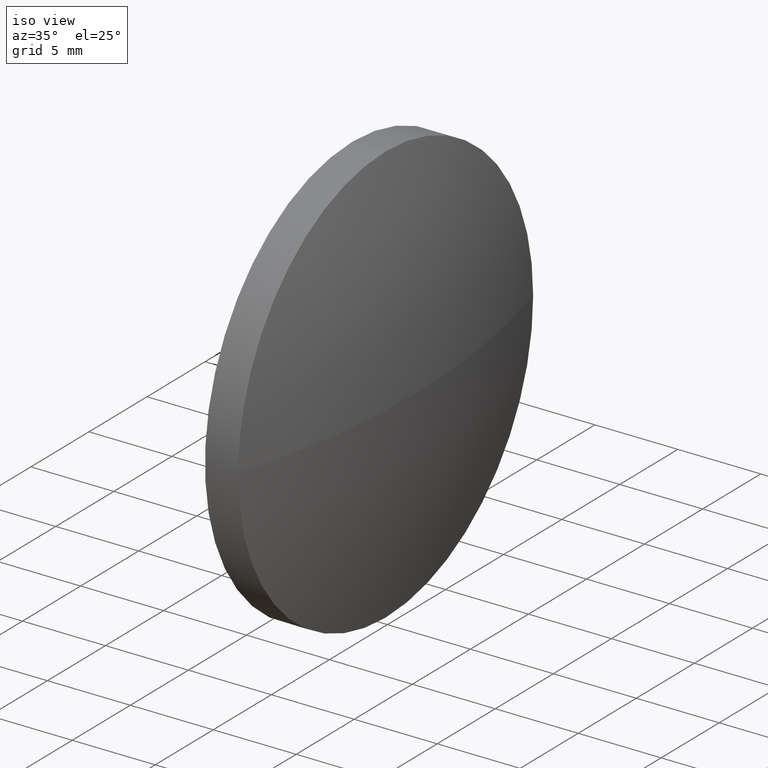
[diagram: clean part render]
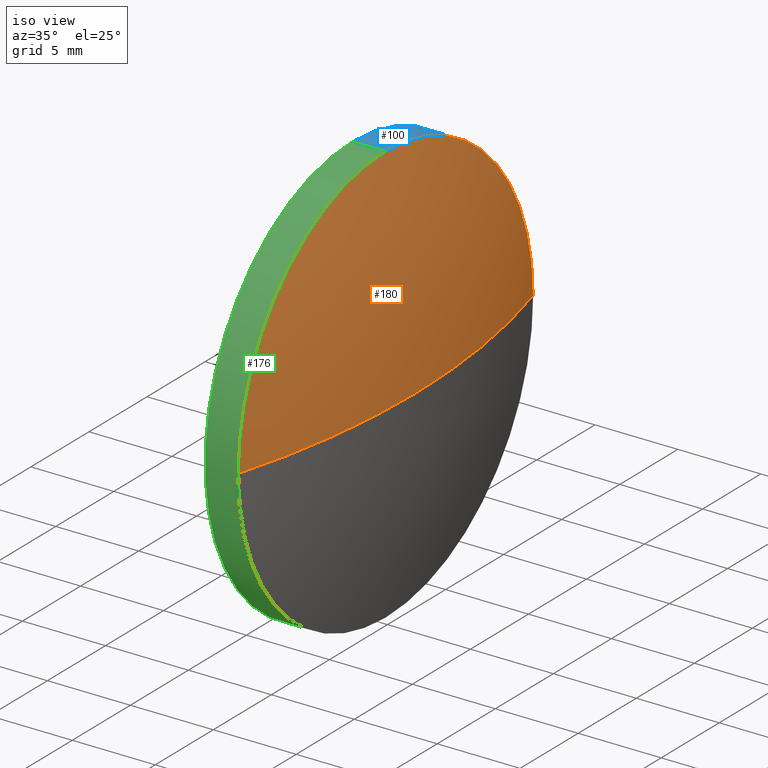
[diagram: same view with three faces highlighted in distinct colors, each labeled with its STEP entity id]
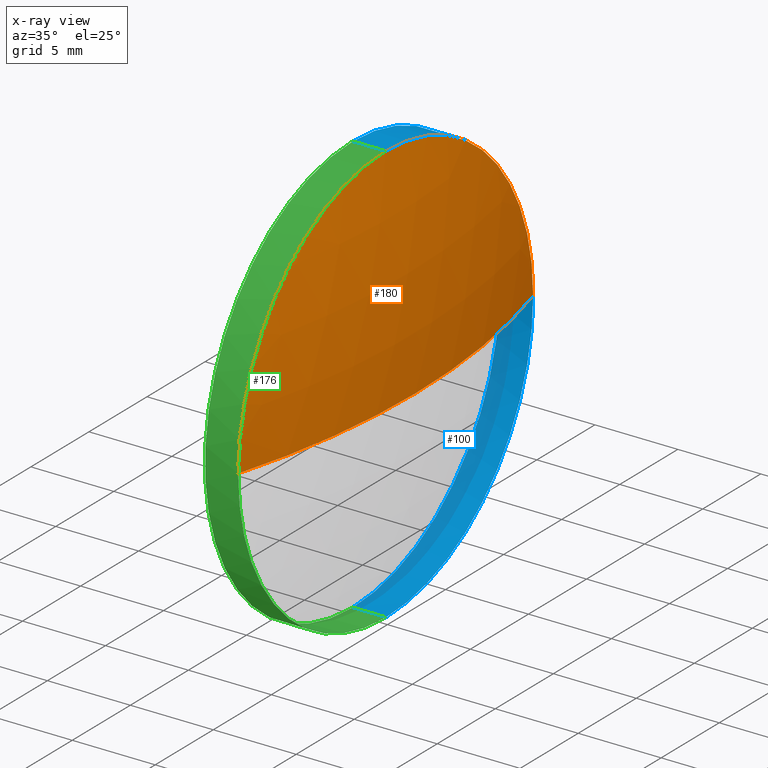
[diagram: x-ray of the same camera — body ghosted, the three highlighted faces saturated]
A machine part, iso view with three faces highlighted in distinct colors.
The next image is the same camera in x-ray (body ghosted, the three faces saturated) — at least one of them is partly hidden behind the body in this view.
Their STEP definitions:

[orange] entity #180 — the highlighted spherical surface has radius 45.7028 mm.
#2 = EDGE_CURVE ( 'NONE', #21, #55, #76, .T. ) ;
#5 = AXIS2_PLACEMENT_3D ( 'NONE', #63, #95, #109 ) ;
#9 = CARTESIAN_POINT ( 'NONE',  ( 456.2206596790415500, 104.6700815255058900, 0.0000000000000000000 ) ) ;
#10 = CIRCLE ( 'NONE', #5, 12.70000000000000300 ) ;
#12 = CARTESIAN_POINT ( 'NONE',  ( 501.9234374568194400, 104.6700815255058900, 0.0000000000000000000 ) ) ;
#15 = ORIENTED_EDGE ( 'NONE', *, *, #2, .F. ) ;
#17 = EDGE_CURVE ( 'NONE', #21, #156, #134, .T. ) ;
#21 = VERTEX_POINT ( 'NONE', #12 ) ;
#29 = DIRECTION ( 'NONE',  ( -1.000000000000000000, -0.0000000000000000000, -0.0000000000000000000 ) ) ;
#34 = AXIS2_PLACEMENT_3D ( 'NONE', #9, #163, #104 ) ;
#37 = ORIENTED_EDGE ( 'NONE', *, *, #48, .F. ) ;
#46 = DIRECTION ( 'NONE',  ( 0.0000000000000000000, 0.0000000000000000000, 1.000000000000000000 ) ) ;
#47 = CARTESIAN_POINT ( 'NONE',  ( 500.1234374568194300, 104.6700815255059400, 0.0000000000000000000 ) ) ;
#48 = EDGE_CURVE ( 'NONE', #55, #83, #10, .T. ) ;
#55 = VERTEX_POINT ( 'NONE', #61 ) ;
#61 = CARTESIAN_POINT ( 'NONE',  ( 500.1234374568194300, 91.97008152550587600, -1.555301434917139400E-015 ) ) ;
#63 = CARTESIAN_POINT ( 'NONE',  ( 500.1234374568194300, 104.6700815255059400, 0.0000000000000000000 ) ) ;
#76 = CIRCLE ( 'NONE', #186, 45.70277777777792500 ) ;
#79 = CARTESIAN_POINT ( 'NONE',  ( 500.1234374568194300, 117.3700815255059500, 0.0000000000000000000 ) ) ;
#80 = EDGE_CURVE ( 'NONE', #83, #156, #108, .T. ) ;
#83 = VERTEX_POINT ( 'NONE', #137 ) ;
#84 = FACE_OUTER_BOUND ( 'NONE', #99, .T. ) ;
#85 = CARTESIAN_POINT ( 'NONE',  ( 456.2206596790415500, 104.6700815255058900, 0.0000000000000000000 ) ) ;
#91 = SPHERICAL_SURFACE ( 'NONE', #34, 45.70277777777791800 ) ;
#92 = ORIENTED_EDGE ( 'NONE', *, *, #17, .T. ) ;
#95 = DIRECTION ( 'NONE',  ( -1.000000000000000000, -0.0000000000000000000, -0.0000000000000000000 ) ) ;
#99 = EDGE_LOOP ( 'NONE', ( #15, #92, #144, #37 ) ) ;
#103 = DIRECTION ( 'NONE',  ( 1.000000000000000000, 0.0000000000000000000, 0.0000000000000000000 ) ) ;
#104 = DIRECTION ( 'NONE',  ( 0.0000000000000000000, 1.000000000000000000, 0.0000000000000000000 ) ) ;
#108 = CIRCLE ( 'NONE', #128, 12.70000000000000300 ) ;
#109 = DIRECTION ( 'NONE',  ( 0.0000000000000000000, 0.0000000000000000000, 1.000000000000000000 ) ) ;
#127 = CARTESIAN_POINT ( 'NONE',  ( 456.2206596790415500, 104.6700815255058900, 0.0000000000000000000 ) ) ;
#128 = AXIS2_PLACEMENT_3D ( 'NONE', #47, #29, #46 ) ;
#134 = CIRCLE ( 'NONE', #142, 45.70277777777792500 ) ;
#137 = CARTESIAN_POINT ( 'NONE',  ( 500.1234374568194300, 104.6700815255059400, 12.70000000000000300 ) ) ;
#142 = AXIS2_PLACEMENT_3D ( 'NONE', #85, #184, #103 ) ;
#144 = ORIENTED_EDGE ( 'NONE', *, *, #80, .F. ) ;
#154 = DIRECTION ( 'NONE',  ( 0.0000000000000000000, 1.224646799147353200E-016, -1.000000000000000000 ) ) ;
#155 = DIRECTION ( 'NONE',  ( 0.0000000000000000000, 1.000000000000000000, 1.224646799147353000E-016 ) ) ;
#156 = VERTEX_POINT ( 'NONE', #79 ) ;
#163 = DIRECTION ( 'NONE',  ( -0.0000000000000000000, 0.0000000000000000000, -1.000000000000000000 ) ) ;
#180 = ADVANCED_FACE ( 'NONE', ( #84 ), #91, .T. ) ;
#184 = DIRECTION ( 'NONE',  ( -0.0000000000000000000, 0.0000000000000000000, 1.000000000000000000 ) ) ;
#186 = AXIS2_PLACEMENT_3D ( 'NONE', #127, #154, #155 ) ;

[blue] entity #100 — the highlighted cylindrical surface (partial cylindrical patch) has radius 12.7 mm, axis along (-1, -0, -0).
#14 = DIRECTION ( 'NONE',  ( -1.000000000000000000, -0.0000000000000000000, -0.0000000000000000000 ) ) ;
#20 = VECTOR ( 'NONE', #56, 1000.000000000000000 ) ;
#22 = DIRECTION ( 'NONE',  ( 0.0000000000000000000, 0.0000000000000000000, 1.000000000000000000 ) ) ;
#29 = DIRECTION ( 'NONE',  ( -1.000000000000000000, -0.0000000000000000000, -0.0000000000000000000 ) ) ;
#32 = AXIS2_PLACEMENT_3D ( 'NONE', #140, #111, #22 ) ;
#33 = ORIENTED_EDGE ( 'NONE', *, *, #90, .F. ) ;
#41 = DIRECTION ( 'NONE',  ( 0.0000000000000000000, 0.0000000000000000000, 1.000000000000000000 ) ) ;
#42 = CARTESIAN_POINT ( 'NONE',  ( 500.1234374568194300, 104.6700815255059400, -12.70000000000000300 ) ) ;
#43 = CARTESIAN_POINT ( 'NONE',  ( 492.4187639093645400, 104.6700815255059400, -12.70000000000000300 ) ) ;
#46 = DIRECTION ( 'NONE',  ( 0.0000000000000000000, 0.0000000000000000000, 1.000000000000000000 ) ) ;
#47 = CARTESIAN_POINT ( 'NONE',  ( 500.1234374568194300, 104.6700815255059400, 0.0000000000000000000 ) ) ;
#49 = DIRECTION ( 'NONE',  ( 0.0000000000000000000, 0.0000000000000000000, 1.000000000000000000 ) ) ;
#50 = ORIENTED_EDGE ( 'NONE', *, *, #181, .F. ) ;
#53 = ORIENTED_EDGE ( 'NONE', *, *, #121, .T. ) ;
#56 = DIRECTION ( 'NONE',  ( -1.000000000000000000, -0.0000000000000000000, -0.0000000000000000000 ) ) ;
#59 = DIRECTION ( 'NONE',  ( -1.000000000000000000, -0.0000000000000000000, -0.0000000000000000000 ) ) ;
#62 = CYLINDRICAL_SURFACE ( 'NONE', #123, 12.70000000000000300 ) ;
#65 = CIRCLE ( 'NONE', #96, 12.70000000000000300 ) ;
#68 = CARTESIAN_POINT ( 'NONE',  ( 492.4187639093645400, 104.6700815255059400, 0.0000000000000000000 ) ) ;
#70 = DIRECTION ( 'NONE',  ( -1.000000000000000000, -0.0000000000000000000, -0.0000000000000000000 ) ) ;
#75 = EDGE_LOOP ( 'NONE', ( #53, #147, #33, #50, #152 ) ) ;
#79 = CARTESIAN_POINT ( 'NONE',  ( 500.1234374568194300, 117.3700815255059500, 0.0000000000000000000 ) ) ;
#80 = EDGE_CURVE ( 'NONE', #83, #156, #108, .T. ) ;
#83 = VERTEX_POINT ( 'NONE', #137 ) ;
#88 = CARTESIAN_POINT ( 'NONE',  ( 498.1234374568193700, 104.6700815255059400, 12.70000000000000300 ) ) ;
#90 = EDGE_CURVE ( 'NONE', #182, #116, #129, .T. ) ;
#96 = AXIS2_PLACEMENT_3D ( 'NONE', #105, #14, #41 ) ;
#100 = ADVANCED_FACE ( 'NONE', ( #165 ), #62, .T. ) ;
#101 = VECTOR ( 'NONE', #59, 1000.000000000000000 ) ;
#102 = EDGE_CURVE ( 'NONE', #135, #116, #132, .T. ) ;
#105 = CARTESIAN_POINT ( 'NONE',  ( 500.1234374568194300, 104.6700815255059400, 0.0000000000000000000 ) ) ;
#106 = CARTESIAN_POINT ( 'NONE',  ( 492.4187639093645400, 104.6700815255059400, 12.70000000000000300 ) ) ;
#108 = CIRCLE ( 'NONE', #128, 12.70000000000000300 ) ;
#111 = DIRECTION ( 'NONE',  ( -1.000000000000000000, -0.0000000000000000000, -0.0000000000000000000 ) ) ;
#116 = VERTEX_POINT ( 'NONE', #164 ) ;
#121 = EDGE_CURVE ( 'NONE', #156, #135, #65, .T. ) ;
#123 = AXIS2_PLACEMENT_3D ( 'NONE', #68, #70, #49 ) ;
#128 = AXIS2_PLACEMENT_3D ( 'NONE', #47, #29, #46 ) ;
#129 = CIRCLE ( 'NONE', #32, 12.70000000000000300 ) ;
#132 = LINE ( 'NONE', #43, #20 ) ;
#135 = VERTEX_POINT ( 'NONE', #42 ) ;
#137 = CARTESIAN_POINT ( 'NONE',  ( 500.1234374568194300, 104.6700815255059400, 12.70000000000000300 ) ) ;
#139 = LINE ( 'NONE', #106, #101 ) ;
#140 = CARTESIAN_POINT ( 'NONE',  ( 498.1234374568193700, 104.6700815255059400, 0.0000000000000000000 ) ) ;
#147 = ORIENTED_EDGE ( 'NONE', *, *, #102, .T. ) ;
#152 = ORIENTED_EDGE ( 'NONE', *, *, #80, .T. ) ;
#156 = VERTEX_POINT ( 'NONE', #79 ) ;
#164 = CARTESIAN_POINT ( 'NONE',  ( 498.1234374568193700, 104.6700815255059400, -12.70000000000000300 ) ) ;
#165 = FACE_OUTER_BOUND ( 'NONE', #75, .T. ) ;
#181 = EDGE_CURVE ( 'NONE', #83, #182, #139, .T. ) ;
#182 = VERTEX_POINT ( 'NONE', #88 ) ;

[green] entity #176 — the highlighted cylindrical surface (partial cylindrical patch) has radius 12.7 mm, axis along (-1, -0, -0).
#3 = ORIENTED_EDGE ( 'NONE', *, *, #102, .F. ) ;
#5 = AXIS2_PLACEMENT_3D ( 'NONE', #63, #95, #109 ) ;
#10 = CIRCLE ( 'NONE', #5, 12.70000000000000300 ) ;
#20 = VECTOR ( 'NONE', #56, 1000.000000000000000 ) ;
#23 = CYLINDRICAL_SURFACE ( 'NONE', #130, 12.70000000000000300 ) ;
#26 = ORIENTED_EDGE ( 'NONE', *, *, #48, .T. ) ;
#35 = DIRECTION ( 'NONE',  ( -1.000000000000000000, -0.0000000000000000000, -0.0000000000000000000 ) ) ;
#40 = DIRECTION ( 'NONE',  ( -1.000000000000000000, -0.0000000000000000000, -0.0000000000000000000 ) ) ;
#42 = CARTESIAN_POINT ( 'NONE',  ( 500.1234374568194300, 104.6700815255059400, -12.70000000000000300 ) ) ;
#43 = CARTESIAN_POINT ( 'NONE',  ( 492.4187639093645400, 104.6700815255059400, -12.70000000000000300 ) ) ;
#48 = EDGE_CURVE ( 'NONE', #55, #83, #10, .T. ) ;
#54 = CARTESIAN_POINT ( 'NONE',  ( 492.4187639093645400, 104.6700815255059400, 0.0000000000000000000 ) ) ;
#55 = VERTEX_POINT ( 'NONE', #61 ) ;
#56 = DIRECTION ( 'NONE',  ( -1.000000000000000000, -0.0000000000000000000, -0.0000000000000000000 ) ) ;
#59 = DIRECTION ( 'NONE',  ( -1.000000000000000000, -0.0000000000000000000, -0.0000000000000000000 ) ) ;
#61 = CARTESIAN_POINT ( 'NONE',  ( 500.1234374568194300, 91.97008152550587600, -1.555301434917139400E-015 ) ) ;
#63 = CARTESIAN_POINT ( 'NONE',  ( 500.1234374568194300, 104.6700815255059400, 0.0000000000000000000 ) ) ;
#73 = AXIS2_PLACEMENT_3D ( 'NONE', #141, #82, #149 ) ;
#74 = DIRECTION ( 'NONE',  ( 0.0000000000000000000, 0.0000000000000000000, 1.000000000000000000 ) ) ;
#77 = ORIENTED_EDGE ( 'NONE', *, *, #181, .T. ) ;
#82 = DIRECTION ( 'NONE',  ( -1.000000000000000000, -0.0000000000000000000, -0.0000000000000000000 ) ) ;
#83 = VERTEX_POINT ( 'NONE', #137 ) ;
#86 = ORIENTED_EDGE ( 'NONE', *, *, #131, .T. ) ;
#87 = EDGE_CURVE ( 'NONE', #116, #182, #170, .T. ) ;
#88 = CARTESIAN_POINT ( 'NONE',  ( 498.1234374568193700, 104.6700815255059400, 12.70000000000000300 ) ) ;
#95 = DIRECTION ( 'NONE',  ( -1.000000000000000000, -0.0000000000000000000, -0.0000000000000000000 ) ) ;
#98 = CIRCLE ( 'NONE', #73, 12.70000000000000300 ) ;
#101 = VECTOR ( 'NONE', #59, 1000.000000000000000 ) ;
#102 = EDGE_CURVE ( 'NONE', #135, #116, #132, .T. ) ;
#106 = CARTESIAN_POINT ( 'NONE',  ( 492.4187639093645400, 104.6700815255059400, 12.70000000000000300 ) ) ;
#109 = DIRECTION ( 'NONE',  ( 0.0000000000000000000, 0.0000000000000000000, 1.000000000000000000 ) ) ;
#116 = VERTEX_POINT ( 'NONE', #164 ) ;
#130 = AXIS2_PLACEMENT_3D ( 'NONE', #54, #40, #74 ) ;
#131 = EDGE_CURVE ( 'NONE', #135, #55, #98, .T. ) ;
#132 = LINE ( 'NONE', #43, #20 ) ;
#135 = VERTEX_POINT ( 'NONE', #42 ) ;
#137 = CARTESIAN_POINT ( 'NONE',  ( 500.1234374568194300, 104.6700815255059400, 12.70000000000000300 ) ) ;
#139 = LINE ( 'NONE', #106, #101 ) ;
#141 = CARTESIAN_POINT ( 'NONE',  ( 500.1234374568194300, 104.6700815255059400, 0.0000000000000000000 ) ) ;
#143 = FACE_OUTER_BOUND ( 'NONE', #172, .T. ) ;
#149 = DIRECTION ( 'NONE',  ( 0.0000000000000000000, 0.0000000000000000000, 1.000000000000000000 ) ) ;
#150 = ORIENTED_EDGE ( 'NONE', *, *, #87, .F. ) ;
#153 = DIRECTION ( 'NONE',  ( 0.0000000000000000000, 0.0000000000000000000, 1.000000000000000000 ) ) ;
#164 = CARTESIAN_POINT ( 'NONE',  ( 498.1234374568193700, 104.6700815255059400, -12.70000000000000300 ) ) ;
#166 = AXIS2_PLACEMENT_3D ( 'NONE', #175, #35, #153 ) ;
#170 = CIRCLE ( 'NONE', #166, 12.70000000000000300 ) ;
#172 = EDGE_LOOP ( 'NONE', ( #3, #86, #26, #77, #150 ) ) ;
#175 = CARTESIAN_POINT ( 'NONE',  ( 498.1234374568193700, 104.6700815255059400, 0.0000000000000000000 ) ) ;
#176 = ADVANCED_FACE ( 'NONE', ( #143 ), #23, .T. ) ;
#181 = EDGE_CURVE ( 'NONE', #83, #182, #139, .T. ) ;
#182 = VERTEX_POINT ( 'NONE', #88 ) ;